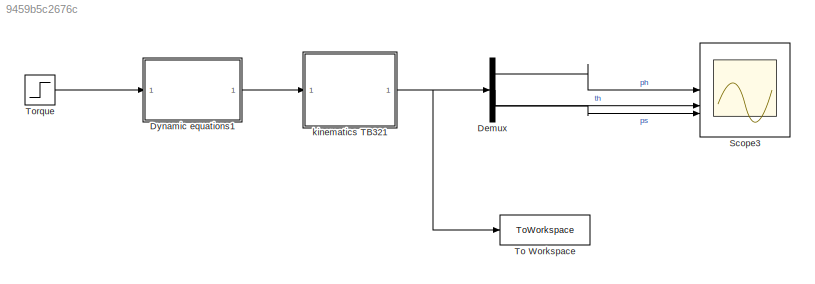
MODEL slx_9459b5c2676c
KIND model
CONFIG AbsTol = auto
CONFIG EnableMultiTasking = off
CONFIG FixedStep = auto
CONFIG MaxStep = auto
CONFIG MinStep = auto
CONFIG RelTol = 1e-3
CONFIG SampleTimeConstraint = Unconstrained
CONFIG SolverName = VariableStepAuto
CONFIG StartTime = 0.0
CONFIG StopTime = Tfin
BLOCK [Demux] Demux
  Outputs = 3
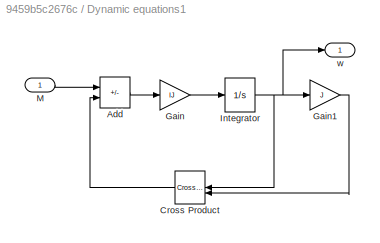
BLOCK [SubSystem] Dynamic equations1
  AncestorBlock = lib_rotations_2014/Euler equation
BLOCK [Sum] Dynamic equations1/Add
  IconShape = rectangular
  Inputs = +-
BLOCK [Reference] Dynamic equations1/Cross Product  REF=vrlib/Utilities/Cross Product
  NameLocation = top
  SourceBlock = vrlib/Utilities/Cross Product
  SourceType = Cross Product
BLOCK [Gain] Dynamic equations1/Gain
  Gain = IJ
  Multiplication = Matrix(K*u)
BLOCK [Gain] Dynamic equations1/Gain1
  Gain = J
  Multiplication = Matrix(K*u)
BLOCK [Integrator] Dynamic equations1/Integrator
  InitialCondition = w0
BLOCK [Inport] Dynamic equations1/M
BLOCK [Outport] Dynamic equations1/w
  VectorParamsAs1DForOutWhenUnconnected = off
BLOCK [Scope] Scope3
  Floating = off
  NumInputPorts = 3
  ScopeSpecificationString = Simulink.scopes.TimeScopeBlockCfg('CurrentConfiguration', extmgr.ConfigurationSet(extmgr.Configuration('Core','General UI',true),extmgr.Configuration('Core','Source UI',true),extmgr.Configuration('Sources','WiredSimulink',true,'DataLoggingVariableName','ScopeData4'),extmgr.Configuration('Visuals','Time Domain',true,'SerializedDisplays',{struct('MinYLimReal','-6.27778','MaxYLimReal','56.50003','YLa...<+2735ch>
BLOCK [ToWorkspace] To Workspace
  FixptAsFi = on
  MaxDataPoints = inf
  SampleTime = -1
  SaveFormat = Timeseries
  VariableName = beta_321
BLOCK [Step] Torque
  After = M
  SampleTime = 0
  Time = 0
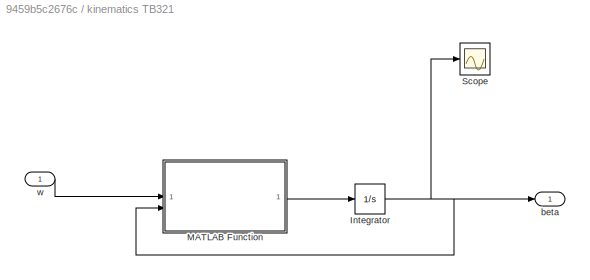
BLOCK [SubSystem] kinematics TB321
BLOCK [Integrator] kinematics TB321/Integrator
  InitialCondition = beta0
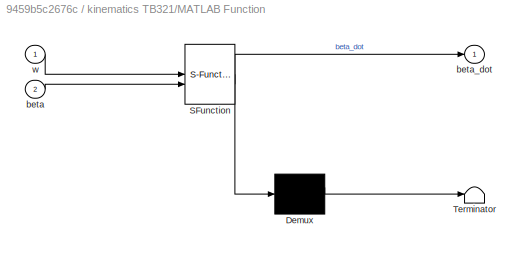
BLOCK [SubSystem] kinematics TB321/MATLAB Function
  ErrorFcn = Stateflow.Translate.translate
  PermitHierarchicalResolution = ExplicitOnly
  SFBlockType = MATLAB Function
  TreatAsAtomicUnit = on
BLOCK [Demux] kinematics TB321/MATLAB Function/ Demux 
  Outputs = 1
BLOCK [S-Function] kinematics TB321/MATLAB Function/ SFunction 
  EnableBusSupport = on
  FunctionName = sf_sfun
  PortCounts = [2 2]
  SFcnIsStateOwnerBlock = off
  SFunctionDeploymentMode = off
  Tag = Stateflow S-Function 2
BLOCK [Terminator] kinematics TB321/MATLAB Function/ Terminator 
BLOCK [Inport] kinematics TB321/MATLAB Function/beta
  Port = 2
BLOCK [Outport] kinematics TB321/MATLAB Function/beta_dot
BLOCK [Inport] kinematics TB321/MATLAB Function/w
BLOCK [Scope] kinematics TB321/Scope
  Floating = off
  NumInputPorts = 1
  ScopeSpecificationString = Simulink.scopes.TimeScopeBlockCfg('CurrentConfiguration', extmgr.ConfigurationSet(extmgr.Configuration('Core','General UI',true),extmgr.Configuration('Core','Source UI',true),extmgr.Configuration('Sources','WiredSimulink',true,'DataLoggingVariableName','ScopeData1'),extmgr.Configuration('Visuals','Time Domain',true,'SerializedDisplays',{struct('MinYLimReal','-6.37111','MaxYLimReal','56.51039','YLa...<+1405ch>
BLOCK [Outport] kinematics TB321/beta
  PortDimensions = 3
  VectorParamsAs1DForOutWhenUnconnected = off
BLOCK [Inport] kinematics TB321/w
  PortDimensions = 3
LINE Demux:1 -> Scope3:1
LINE Demux:2 -> Scope3:2
LINE Demux:3 -> Scope3:3
LINE Dynamic equations1:1 -> kinematics TB321:1
LINE Torque:1 -> Dynamic equations1:1
NET kinematics TB321/Integrator:1 -> kinematics TB321/MATLAB Function:2, kinematics TB321/Scope:1, kinematics TB321/beta:1
LINE kinematics TB321/MATLAB Function:1 -> kinematics TB321/Integrator:1
LINE kinematics TB321/w:1 -> kinematics TB321/MATLAB Function:1
NET kinematics TB321:1 -> Demux:1, To Workspace:1
note: NET lines group one-source signal fan-out (src -> all destinations, sorted); 1:1 wires keep LINE
CHART kinematics TB321/MATLAB Function states=1 transitions=1
  STATE_LABEL 'eML_blk_kernel()'
  STATE_LABEL 'SCRIPT:\nfunction beta_dot = kinTB_321(w,beta)\n%The function kinTB_321(w,beta) compute the kinematics of TB-321 using the\n%inverse of the DCM matrix. The parametres are omega, the angular velocity,\n%and angles.\n\nph = beta(1);\nth = beta(2);\nps = beta(3);\n\nT = [cos(th) sin(ph)*sin(th) cos(ph)*sin(th);\n       0 cos(ph)*cos(th) -cos(th)*sin(ph);\n       0         sin(ph)          cos(ph)];\nT = T/cos(th)...<+26ch>'
CHART  states=0 transitions=0
